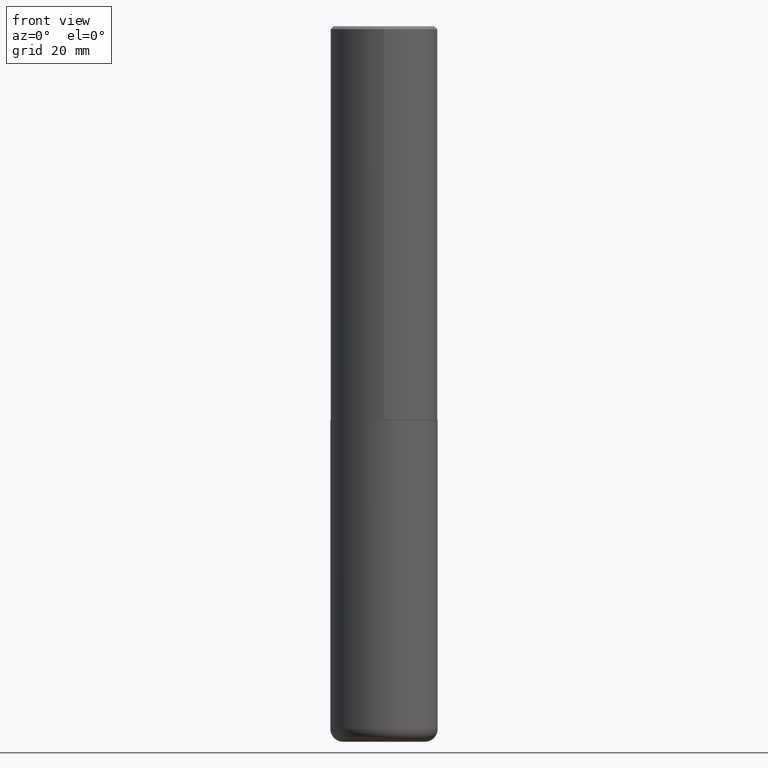
[diagram: clean part render]
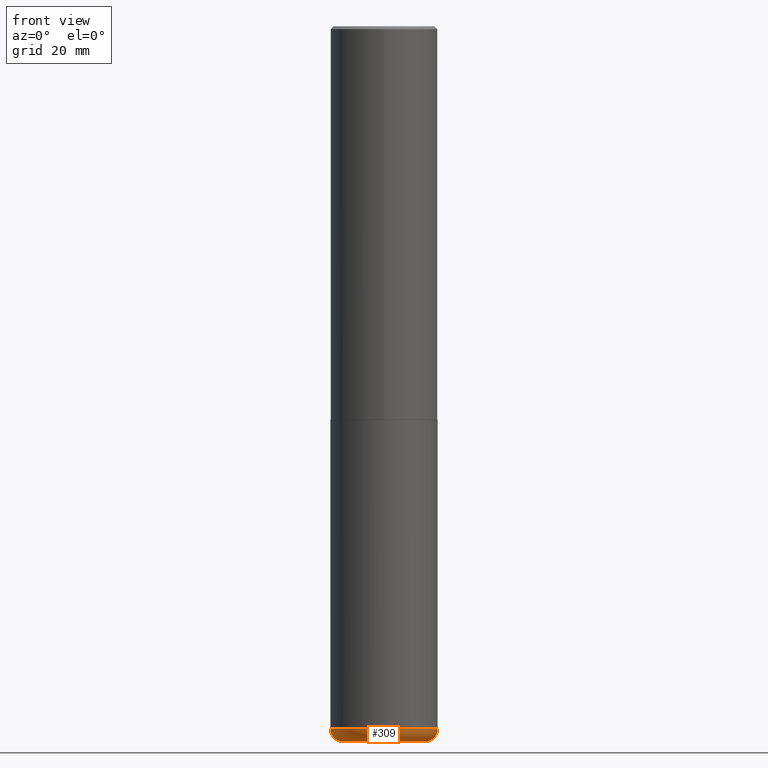
[diagram: same view with one face highlighted and labeled with its STEP entity id]
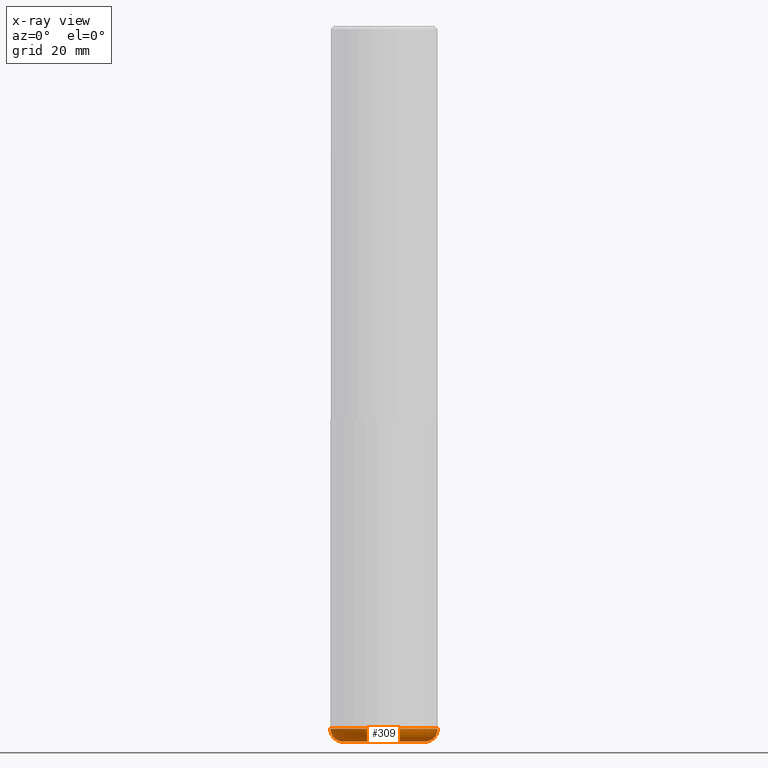
[diagram: x-ray of the same camera — body ghosted, the highlighted face saturated]
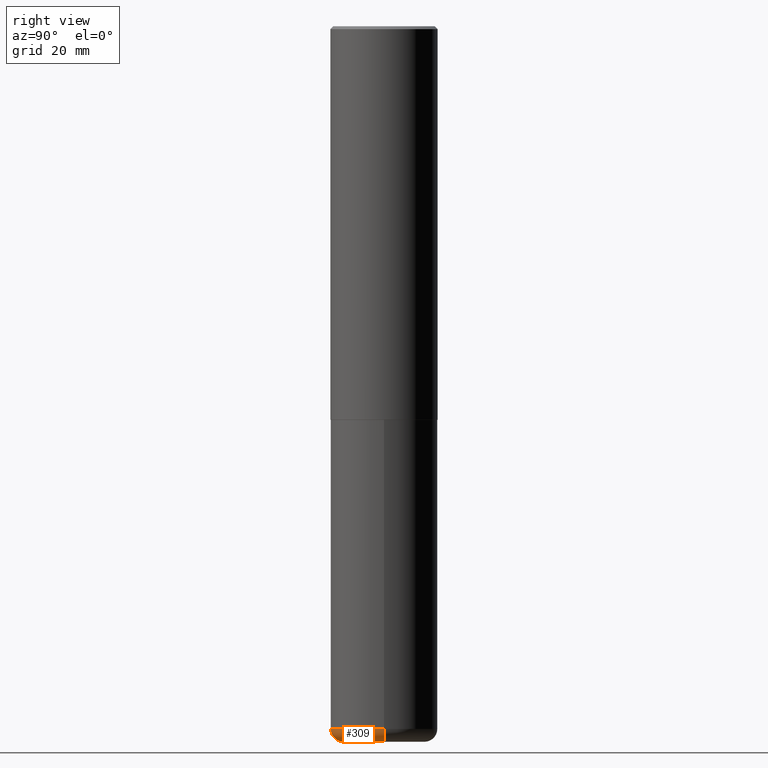
[diagram: same view with one face highlighted and labeled with its STEP entity id]
A machine part, front view. The second image highlights one B-rep face of the part: STEP entity #309.
The next image is the same camera in x-ray: the body ghosted, the highlighted face saturated — about 0% of this face is hidden behind the body in this view.
A second angle (right view) of the same face is appended — the face is thin or edge-on in the first view.
In plain terms, the highlighted toroidal blend (fillet) surface has major radius 7.239 mm and minor (blend) radius 2.286 mm.
Its self-contained STEP definition (entity closure, byte-faithful):
#4 = CIRCLE ( 'NONE', #298, 0.3749999999999999445 ) ;
#10 = AXIS2_PLACEMENT_3D ( 'NONE', #96, #383, #347 ) ;
#13 = ORIENTED_EDGE ( 'NONE', *, *, #394, .F. ) ;
#43 = ORIENTED_EDGE ( 'NONE', *, *, #182, .T. ) ;
#51 = VERTEX_POINT ( 'NONE', #199 ) ;
#60 = DIRECTION ( 'NONE',  ( -2.445468806185136597E-29, 3.491481338843145583E-15, 1.000000000000000000 ) ) ;
#96 = CARTESIAN_POINT ( 'NONE',  ( 0.2850000000000000311, -1.913331773686043011E-14, -4.910000000000000142 ) ) ;
#104 = EDGE_CURVE ( 'NONE', #51, #362, #4, .T. ) ;
#156 = DIRECTION ( 'NONE',  ( 7.105427357601001859E-15, 1.000000000000000000, -3.491481338843145583E-15 ) ) ;
#170 = AXIS2_PLACEMENT_3D ( 'NONE', #177, #198, #326 ) ;
#171 = CIRCLE ( 'NONE', #398, 0.2850000000000000311 ) ;
#176 = CARTESIAN_POINT ( 'NONE',  ( 1.200725183836902132E-28, -1.714317337371984662E-14, -4.910000000000000142 ) ) ;
#177 = CARTESIAN_POINT ( 'NONE',  ( 1.200725183836902132E-28, -1.714317337371984662E-14, -4.910000000000000142 ) ) ;
#182 = EDGE_CURVE ( 'NONE', #363, #184, #171, .T. ) ;
#184 = VERTEX_POINT ( 'NONE', #277 ) ;
#188 = DIRECTION ( 'NONE',  ( 1.000000000000000000, -6.982962677686266711E-15, 0.000000000000000000 ) ) ;
#191 = DIRECTION ( 'NONE',  ( 1.000000000000000000, -6.982962677686269077E-15, 0.000000000000000000 ) ) ;
#198 = DIRECTION ( 'NONE',  ( -2.445468806185136597E-29, 3.491481338843145583E-15, 1.000000000000000000 ) ) ;
#199 = CARTESIAN_POINT ( 'NONE',  ( -0.3749999999999999445, -1.447863811461947092E-14, -4.910000000000000142 ) ) ;
#205 = CARTESIAN_POINT ( 'NONE',  ( 0.3749999999999999445, -1.976178437785219664E-14, -4.910000000000000142 ) ) ;
#209 = DIRECTION ( 'NONE',  ( -1.000000000000000000, 7.105427357600996337E-15, 0.000000000000000000 ) ) ;
#212 = ORIENTED_EDGE ( 'NONE', *, *, #104, .F. ) ;
#218 = CARTESIAN_POINT ( 'NONE',  ( -0.2850000000000000311, -1.495549900595945556E-14, -5.000000000000000000 ) ) ;
#221 = CIRCLE ( 'NONE', #308, 0.08999999999999992728 ) ;
#243 = CIRCLE ( 'NONE', #10, 0.08999999999999992728 ) ;
#245 = EDGE_LOOP ( 'NONE', ( #13, #43, #344, #212 ) ) ;
#252 = CARTESIAN_POINT ( 'NONE',  ( -0.2850000000000000311, -1.511812657680356008E-14, -4.910000000000000142 ) ) ;
#277 = CARTESIAN_POINT ( 'NONE',  ( 0.2850000000000000311, -1.944755105735631653E-14, -5.000000000000000000 ) ) ;
#295 = DIRECTION ( 'NONE',  ( -2.445468806185136597E-29, 3.491481338843145583E-15, 1.000000000000000000 ) ) ;
#298 = AXIS2_PLACEMENT_3D ( 'NONE', #176, #295, #191 ) ;
#308 = AXIS2_PLACEMENT_3D ( 'NONE', #252, #156, #209 ) ;
#309 = ADVANCED_FACE ( 'NONE', ( #396 ), #351, .T. ) ;
#326 = DIRECTION ( 'NONE',  ( 1.000000000000000000, -6.982962677686269077E-15, 4.883557194083113462E-29 ) ) ;
#344 = ORIENTED_EDGE ( 'NONE', *, *, #382, .T. ) ;
#345 = CARTESIAN_POINT ( 'NONE',  ( 1.222734403092568523E-28, -1.745740669421572989E-14, -5.000000000000000000 ) ) ;
#347 = DIRECTION ( 'NONE',  ( 1.000000000000000000, -6.982962677686273810E-15, 0.000000000000000000 ) ) ;
#351 = TOROIDAL_SURFACE ( 'NONE', #170, 0.2850000000000000311, 0.08999999999999989952 ) ;
#362 = VERTEX_POINT ( 'NONE', #205 ) ;
#363 = VERTEX_POINT ( 'NONE', #218 ) ;
#382 = EDGE_CURVE ( 'NONE', #184, #362, #243, .T. ) ;
#383 = DIRECTION ( 'NONE',  ( -6.982962677686266711E-15, -1.000000000000000000, 3.491481338843145583E-15 ) ) ;
#394 = EDGE_CURVE ( 'NONE', #363, #51, #221, .T. ) ;
#396 = FACE_OUTER_BOUND ( 'NONE', #245, .T. ) ;
#398 = AXIS2_PLACEMENT_3D ( 'NONE', #345, #60, #188 ) ;